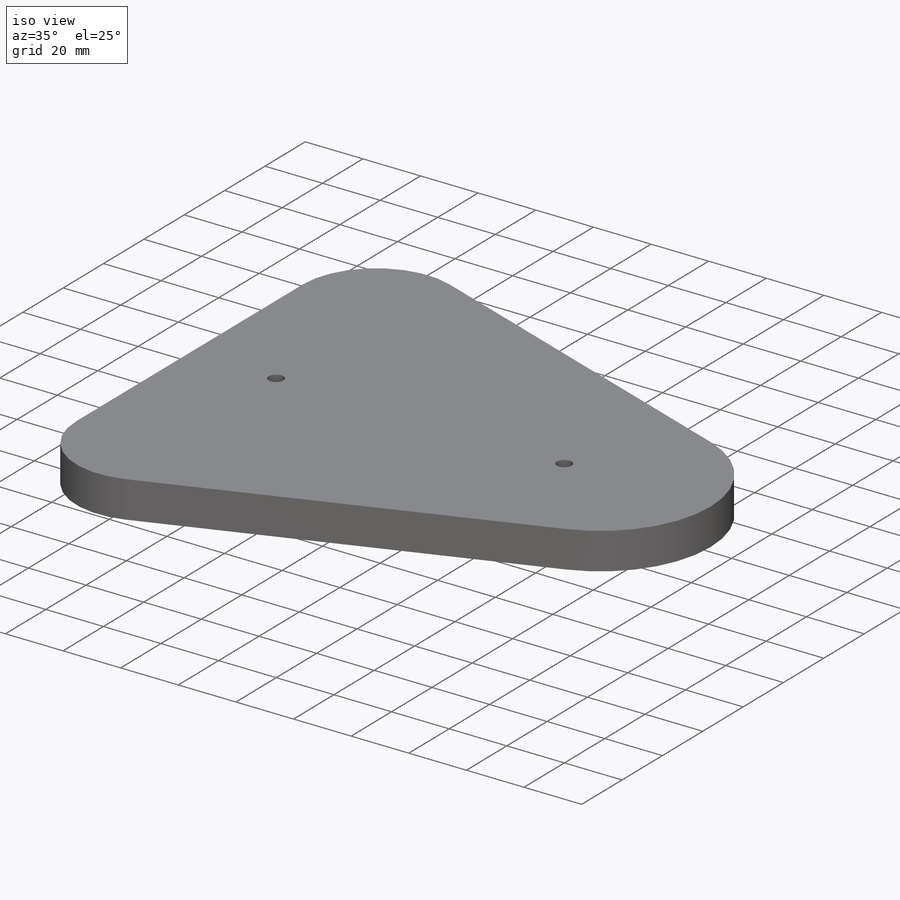
[diagram: iso view]
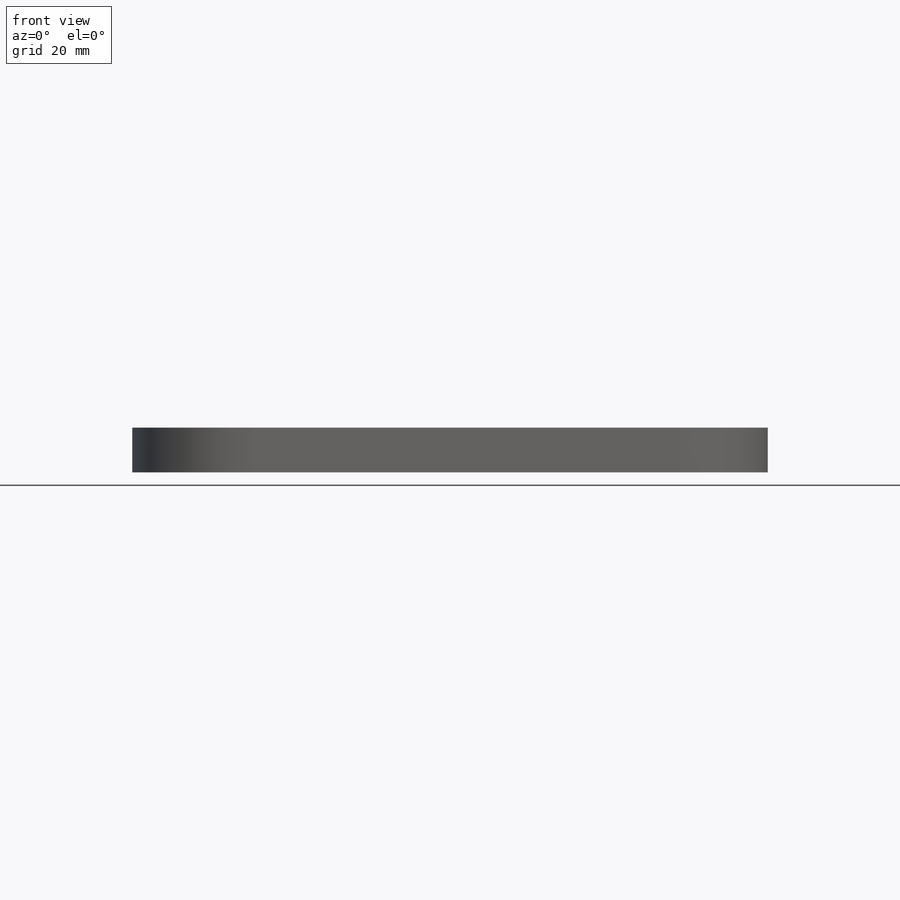
[diagram: front view]
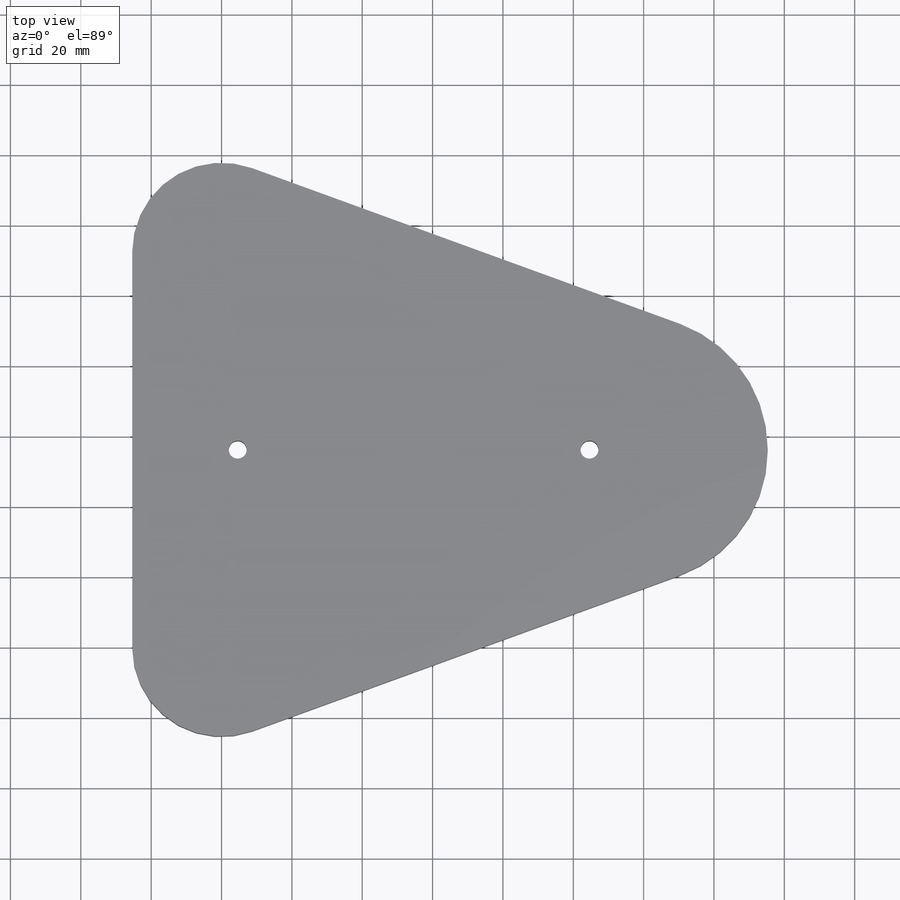
[diagram: top view]
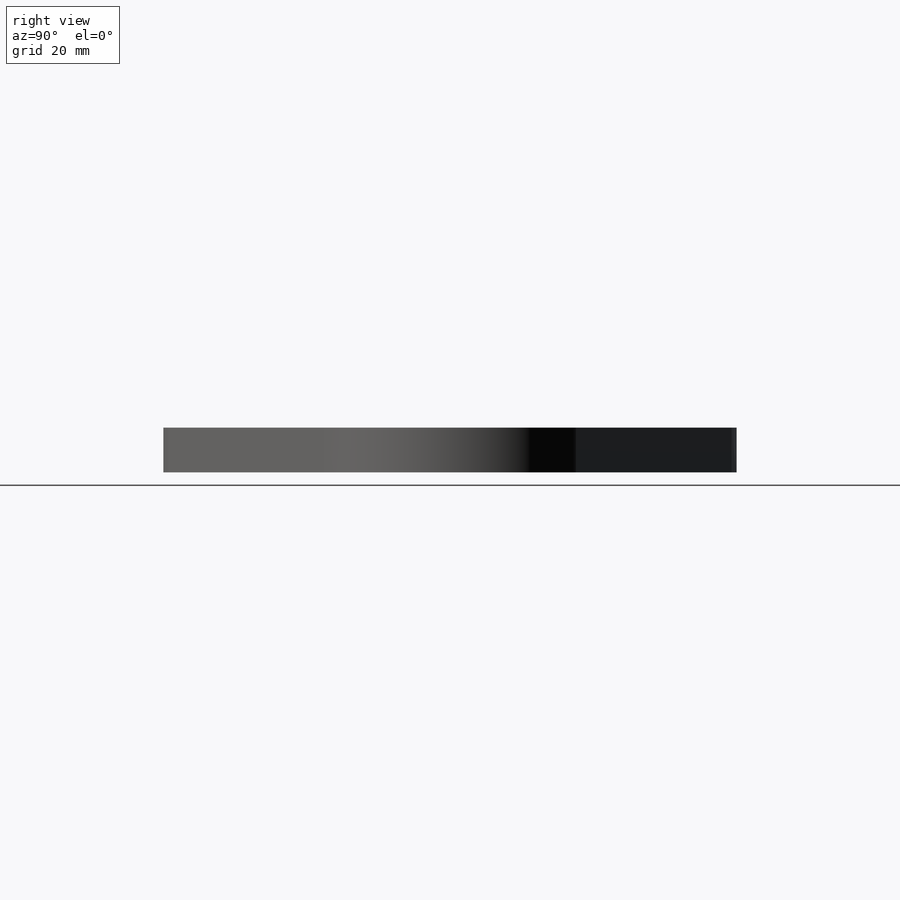
[diagram: right view]
SOLIDWORKS PART (.sldprt)
format: sldprt  version: not decoded by parser v0  size: 152,064 bytes
history: native  units: mm
features: sketch x3, thread x2, material x1, extrude x1, hole x1 (+11 scaffold rows collapsed)
feature tree (19):
  scaffold x11  (default folders/planes/origin — collapsed)
  material  "Material <not specified>"
  sketch  "Sketch1"  dims[c1.D1=~12.651336mm c1.D2=~39.760627mm c2.D1=112.35mm c2.D2=129.97mm c2.D3=129.97mm]
  extrude  "Boss-Extrude1"  Depth=12.7mm
  hole  "1/4-20 Tapped Hole1"  Diameter=5.1054mm Depth=19.05mm
  sketch  "3DSketch3"  dims[D1=100.0mm D2=30.0mm]
  sketch  "Sketch4"  dims[hole-wizard template sketch: 50 standard entries collapsed; hole parameters above]
  thread  "Hole Thread1"  Diameter=12.7mm  [1 undecoded]
  thread  "Hole Thread2"  Diameter=12.7mm  [1 undecoded]
decode coverage: 7 of 7 modeling features carry decoded parameters
note: ~ marks probable driven/reference dimensions
note: 2 parameter values undecoded
note: suppression state not decoded; provenance and decode notes live in map.json
